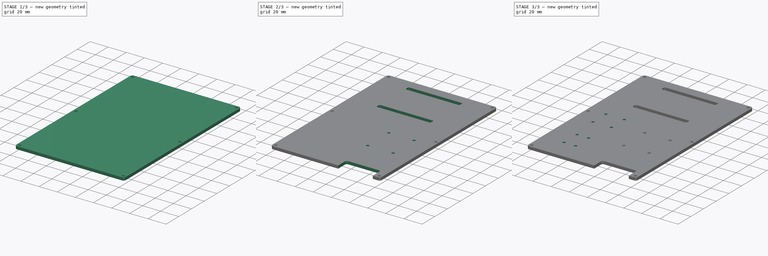
[diagram: build sequence overview — one tinted view per stage of 3, left to right]
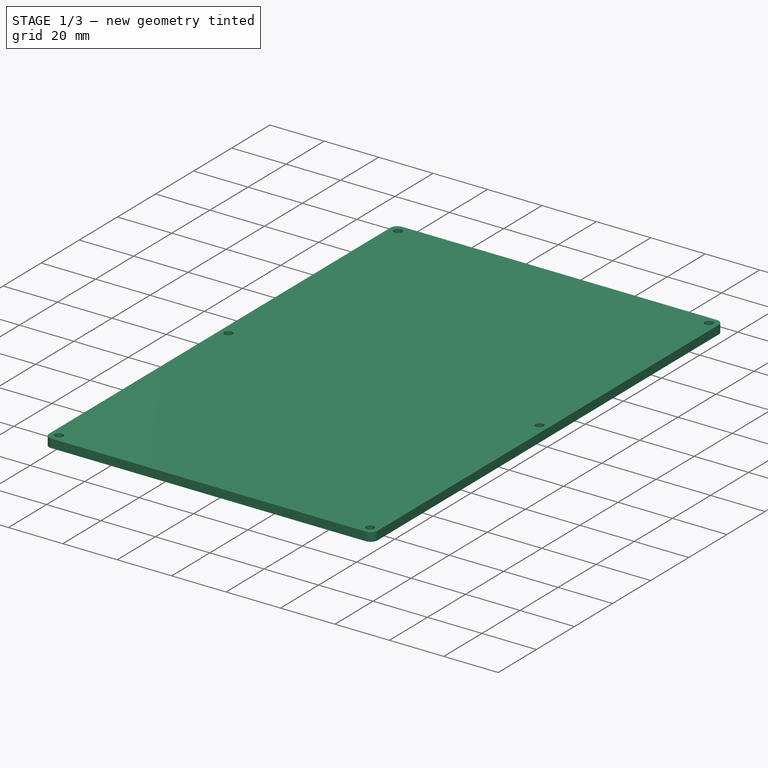
[diagram: stage 1 of 3 — iso view after this stage's code; geometry added in this stage tinted green]
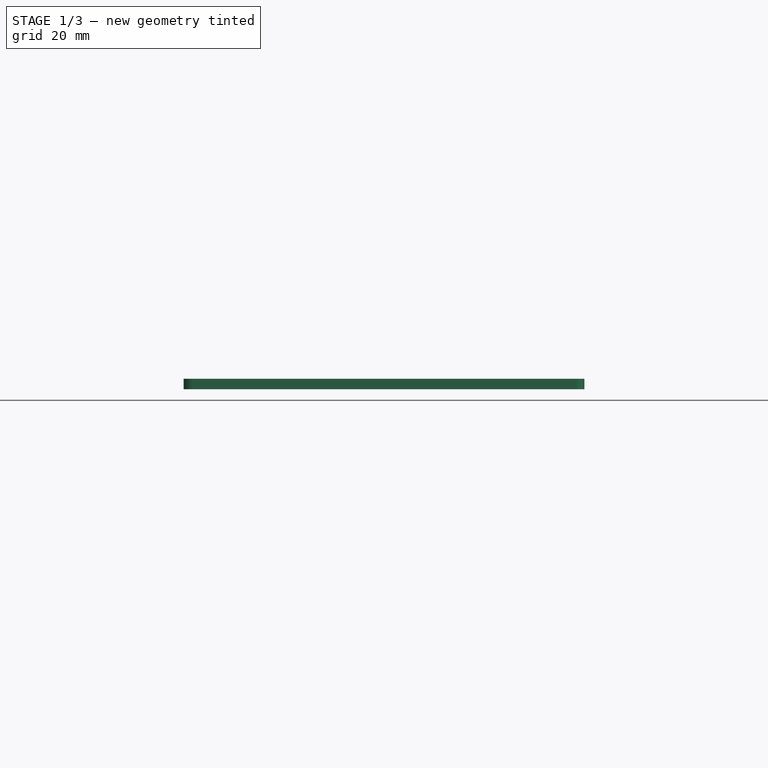
[diagram: stage 1 of 3 — front view after this stage's code; geometry added in this stage tinted green]
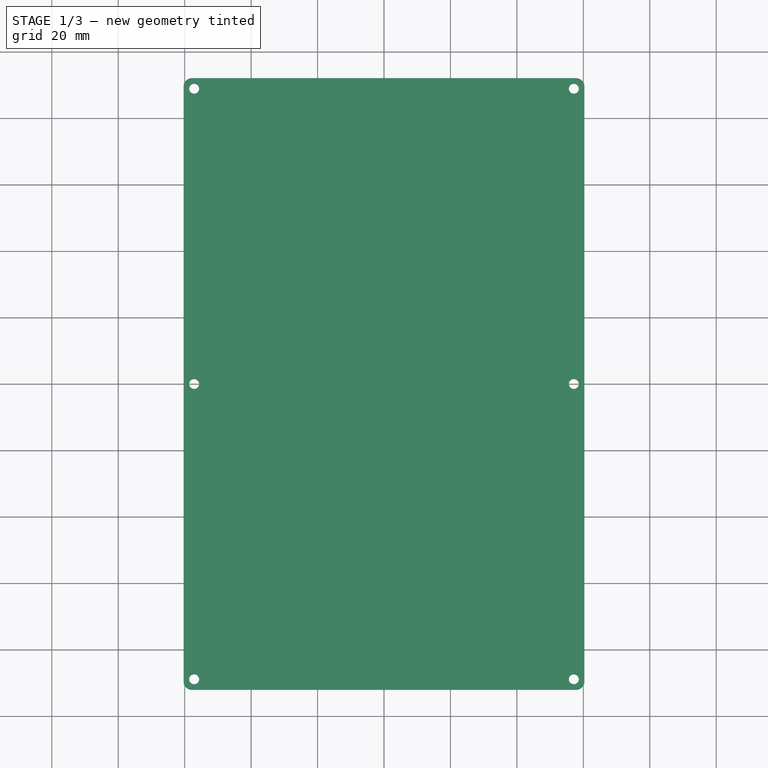
[diagram: stage 1 of 3 — top view after this stage's code; geometry added in this stage tinted green]
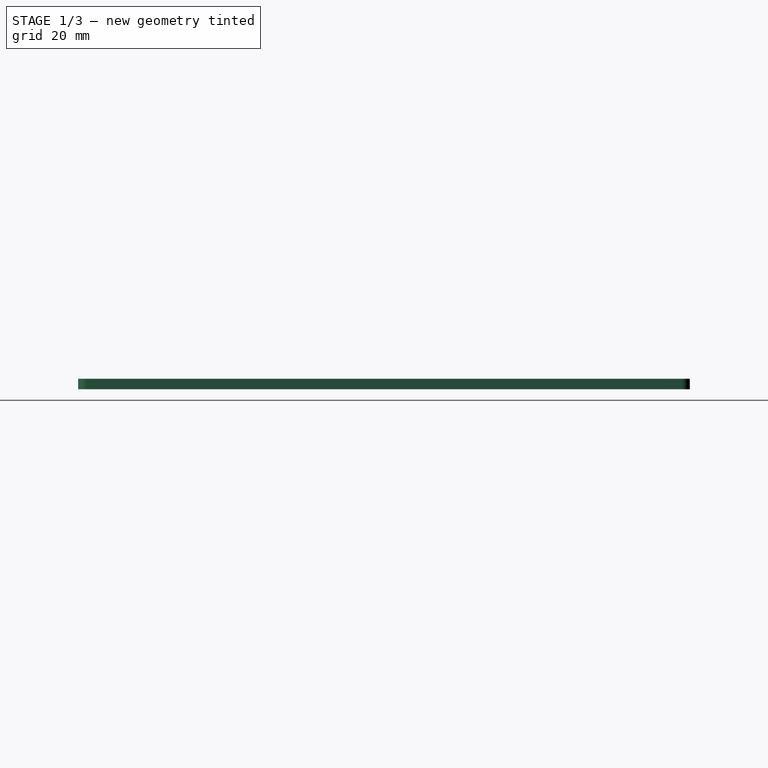
[diagram: stage 1 of 3 — right view after this stage's code; geometry added in this stage tinted green]
FCSTD DOCUMENT  (FreeCAD 0.20R29177 (Git))
Label: bot_plate
License: All rights reserved
LicenseURL: http://en.wikipedia.org/wiki/All_rights_reserved
objects: Sketcher::SketchObject×7, PartDesign::Pocket×6, Spreadsheet::Sheet×1, PartDesign::Pad×1, PartDesign::Plane×1, PartDesign::Body×1, Part::Part2DObjectPython×1
note: 24 computed .brp shape members not serialized (recipe doc carries the construction recipe); baked Part::Feature solids carry a one-line shape summary decoded from their .brp

FEATURE [Sketcher::SketchObject] Sketch  label="BoundarySketch"
  FullyConstrained = true
  MapMode = 5
  Support = -> [XY_Plane]
  expr: Constraints[20] = Spreadsheet.FilletRadius
  expr: Constraints[21] = Spreadsheet.Length
  expr: Constraints[22] = Spreadsheet.Width
  sketch-geometry (10):
    g0: ArcOfCircle CenterX=-57.785 CenterY=89.535 CenterZ=0 NormalX=0 NormalY=0 NormalZ=1 AngleXU=0 Radius=2.54 StartAngle=1.5708 EndAngle=3.14159
    g1: LineSegment StartX=-57.785 StartY=92.075 StartZ=0 EndX=57.785 EndY=92.075 EndZ=0
    g2: ArcOfCircle CenterX=57.785 CenterY=89.535 CenterZ=0 NormalX=0 NormalY=0 NormalZ=1 AngleXU=0 Radius=2.54 StartAngle=9e-16 EndAngle=1.5708
    g3: LineSegment StartX=60.325 StartY=89.535 StartZ=0 EndX=60.325 EndY=-89.535 EndZ=0
    g4: ArcOfCircle CenterX=57.785 CenterY=-89.535 CenterZ=0 NormalX=0 NormalY=0 NormalZ=1 AngleXU=0 Radius=2.54 StartAngle=4.71239 EndAngle=6.28319
    g5: LineSegment StartX=57.785 StartY=-92.075 StartZ=0 EndX=-57.785 EndY=-92.075 EndZ=0
    g6: ArcOfCircle CenterX=-57.785 CenterY=-89.535 CenterZ=0 NormalX=0 NormalY=0 NormalZ=1 AngleXU=0 Radius=2.54 StartAngle=3.14159 EndAngle=4.71239
    g7: LineSegment StartX=-60.325 StartY=-89.535 StartZ=0 EndX=-60.325 EndY=89.535 EndZ=0
    g8: GeomPoint X=-60.325 Y=92.075 Z=0
    g9: GeomPoint X=60.325 Y=-92.075 Z=0
  constraints (23):
    c: Tangent(g0,g1) = 1.5708
    c: Tangent(g1,g2) = 1.5708
    c: Tangent(g2,g3) = 1.5708
    c: Tangent(g3,g4) = 1.5708
    c: Tangent(g4,g5) = 1.5708
    c: Tangent(g5,g6) = 1.5708
    c: Tangent(g6,g7) = 1.5708
    c: Tangent(g7,g0) = 1.5708
    c: Horizontal(g1)
    c: Horizontal(g5)
    c: Vertical(g3)
    c: Vertical(g7)
    c: Equal(g0,g2)
    c: Equal(g2,g4)
    c: Equal(g4,g6)
    c: PointOnObject(g8,g1)
    c: PointOnObject(g8,g7)
    c: PointOnObject(g9,g3)
    c: PointOnObject(g9,g5)
    c: Symmetric(g0,g4,g-1)
    c: Radius(g2) = 2.54
    c: Distance(g4,g1) = 184.15
    c: Distance(g6,g3) = 120.65
FEATURE [Spreadsheet::Sheet] Spreadsheet
  cells = A2=Plate Dimensions; A3=Length; B3(Length)==7.25in; A4=Width; B4(Width)==4.75in; A5=Thickness; B5(Thickness)==0.125in; A6=FilletRadius; B6(FilletRadius)==0.1in; A8=Top Plate Mount; A9=TopPlateMountLength; B9(TopPlateMountLength)==7in; A10=TopPlateMountWidth; B10(TopPlateMountWidth)==4.5in; A11=TopPlateMountHoleDiameter; B11(TopPlateMountHoleDiameter)==3mm; A13=Battery Mount; A14=BatMountSlotLength; B14(BatMountSlotLength)==2in; A15=BatMountSlotWidth; B15(BatMountSlotWidth)==2.35in; A16=BatMountSlotOffsetY; B16(BatMountSlotOffsetY)==2.2in; A17=BatMountSlotGap; B17(BatMountSlotGap)==0.2in; A18=BatMountSlotFilletRadius; B18(BatMountSlotFilletRadius)==0.05in; A20=Solar Charger Mount; A21=ChargerMountLength; B21(ChargerMountLength)==1.3in; A22=ChargerMountWidth; B22(ChargerMountWidth)==1.1in; A23=ChargerMountHoleDiameter; B23(ChargerMountHoleDiameter)==3mm; A24=ChargerMountOffsetX; B24(ChargerMountOffsetX)==1in; A25=ChargerMountOffsetY; B25(ChargerMountOffsetY)==1in; A27=Power Cutout; A28=PowerCutoutLength; B28(PowerCutoutLength)==0.5in; A29=PowerCutoutWidth; B29(PowerCutoutWidth)==1.5in; A30=PowerCutoutOffsetX; B30(PowerCutoutOffsetX)==1.3in; A31=PowerCutoutMargin; B31(PowerCutoutMargin)==0.25in; A32=PowerCutoutFilletRadius; B32(PowerCutoutFilletRadius)==0.1in; A34=GPS Mount; A35=GPSMountLength; B35(GPSMountLength)==0.8in; A36=GPSMountWidth; B36(GPSMountWidth)==0.8in; A37=GPSMountHoleDiameter; B37(GPSMountHoleDiameter)==3mm; A38=GPSMountOffsetX; B38(GPSMountOffsetX)==0.25 * Width; A39=GPSMountOffsetY; B39(GPSMountOffsetY)==0.25in; A41=BME688 Mount; A42=BME688MountLength; B42(BME688MountLength)==0.8in; A43=BME688MountWidth; B43(BME688MountWidth)==0.5in; A44=BME688MountHoleDiamter; B44(BME688MountHoleDiamter)==3mm; A45=BME688MountOffsetX; B45(BME688MountOffsetX)==0.25 * Width; A46=BME688MountOffsetY; B46(BME688MountOffsetY)==2.25in
FEATURE [PartDesign::Pad] Pad  label="BoundaryPad"
  Direction = (0,0,1)
  Length = 3.175
  Length2 = 10
  Profile = -> Sketch
  ReferenceAxis = -> Sketch [N_Axis]
  Type = 0
  expr: Length = Spreadsheet.Thickness
FEATURE [PartDesign::Plane] DatumPlane  label="TopSurfaceDatumPlane"
  AttachmentOffset = pos=(0,0,3.175) rot=(0,0,1;0rad)
  Length = 150.461
  MapMode = 5
  Placement = pos=(0,0,3.175) rot=(0,0,1;0rad)
  ResizeMode = 0
  Support = -> [XY_Plane]
  Width = 213.961
  expr: .AttachmentOffset.Base.z = Spreadsheet.Thickness
FEATURE [Sketcher::SketchObject] Sketch001  label="TopPlateMountSketch"
  FullyConstrained = true
  MapMode = 5
  Placement = pos=(0,0,3.175) rot=(0,0,1;0rad)
  Support = -> [DatumPlane]
  expr: Constraints[10] = Spreadsheet.TopPlateMountWidth
  expr: Constraints[18] = Spreadsheet.TopPlateMountHoleDiameter
  expr: Constraints[9] = Spreadsheet.TopPlateMountLength
  sketch-geometry (12):
    g0: LineSegment StartX=-57.15 StartY=88.9 StartZ=0 EndX=57.15 EndY=88.9 EndZ=0
    g1: LineSegment StartX=57.15 StartY=88.9 StartZ=0 EndX=57.15 EndY=-88.9 EndZ=0
    g2: LineSegment StartX=57.15 StartY=-88.9 StartZ=0 EndX=-57.15 EndY=-88.9 EndZ=0
    g3: LineSegment StartX=-57.15 StartY=-88.9 StartZ=0 EndX=-57.15 EndY=88.9 EndZ=0
    g4: Circle CenterX=-57.15 CenterY=88.9 CenterZ=0 NormalX=0 NormalY=0 NormalZ=1 AngleXU=0 Radius=1.5
    g5: Circle CenterX=57.15 CenterY=88.9 CenterZ=0 NormalX=0 NormalY=0 NormalZ=1 AngleXU=0 Radius=1.5
    g6: Circle CenterX=-57.15 CenterY=-88.9 CenterZ=0 NormalX=0 NormalY=0 NormalZ=1 AngleXU=0 Radius=1.5
    g7: Circle CenterX=57.15 CenterY=-88.9 CenterZ=0 NormalX=0 NormalY=0 NormalZ=1 AngleXU=0 Radius=1.5
    g8: GeomPoint X=-57.15 Y=6e-15 Z=0
    g9: GeomPoint X=57.15 Y=7.5e-15 Z=0
    g10: Circle CenterX=-57.15 CenterY=6e-15 CenterZ=0 NormalX=0 NormalY=0 NormalZ=1 AngleXU=0 Radius=1.5
    g11: Circle CenterX=57.15 CenterY=7.5e-15 CenterZ=0 NormalX=0 NormalY=0 NormalZ=1 AngleXU=0 Radius=1.5
  constraints (25):
    c: Coincident(g0,g1)
    c: Coincident(g1,g2)
    c: Coincident(g2,g3)
    c: Coincident(g3,g0)
    c: Horizontal(g0)
    c: Horizontal(g2)
    c: Vertical(g1)
    c: Vertical(g3)
    c: Symmetric(g0,g1,g-1)
    c: Distance(g1) = 177.8
    c: Distance(g2) = 114.3
    c: Equal(g4,g5)
    c: Equal(g5,g7)
    c: Equal(g7,g6)
    c: Coincident(g4,g0)
    c: Coincident(g0,g5)
    c: Coincident(g6,g2)
    c: Coincident(g1,g7)
    c: Diameter(g4) = 3
    c: Symmetric(g4,g6,g8)
    c: Symmetric(g7,g5,g9)
    c: Equal(g10,g11)
    c: Equal(g11,g4)
    c: Coincident(g10,g8)
    c: Coincident(g11,g9)
FEATURE [PartDesign::Pocket] Pocket  label="TopPlateMountPocket"
  BaseFeature = -> Pad
  Direction = (0,0,-1)
  Length = 5
  Length2 = 5
  Profile = -> Sketch001
  ReferenceAxis = -> Sketch001 [N_Axis]
  Type = 1
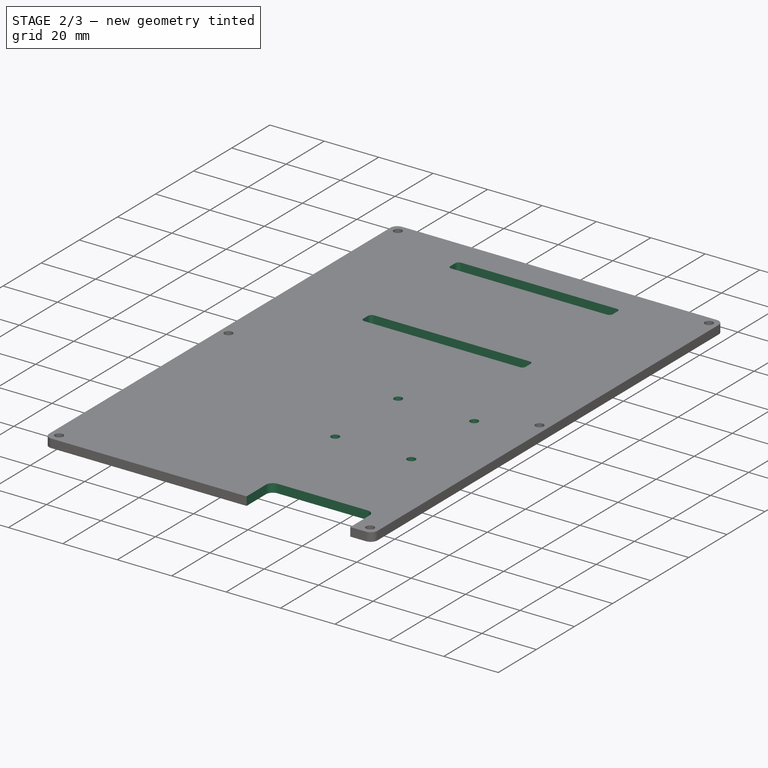
[diagram: stage 2 of 3 — iso view after this stage's code; geometry added in this stage tinted green]
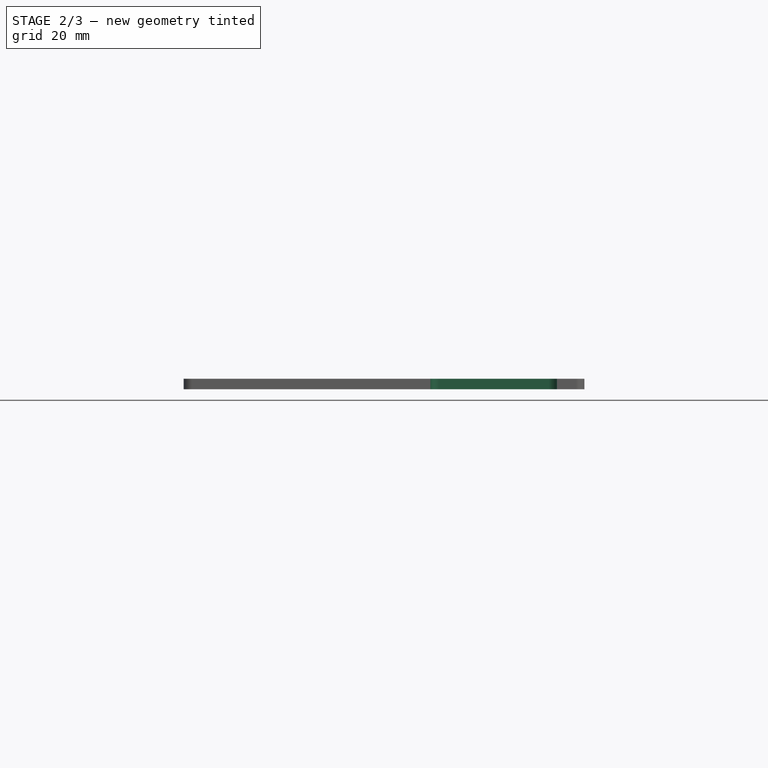
[diagram: stage 2 of 3 — front view after this stage's code; geometry added in this stage tinted green]
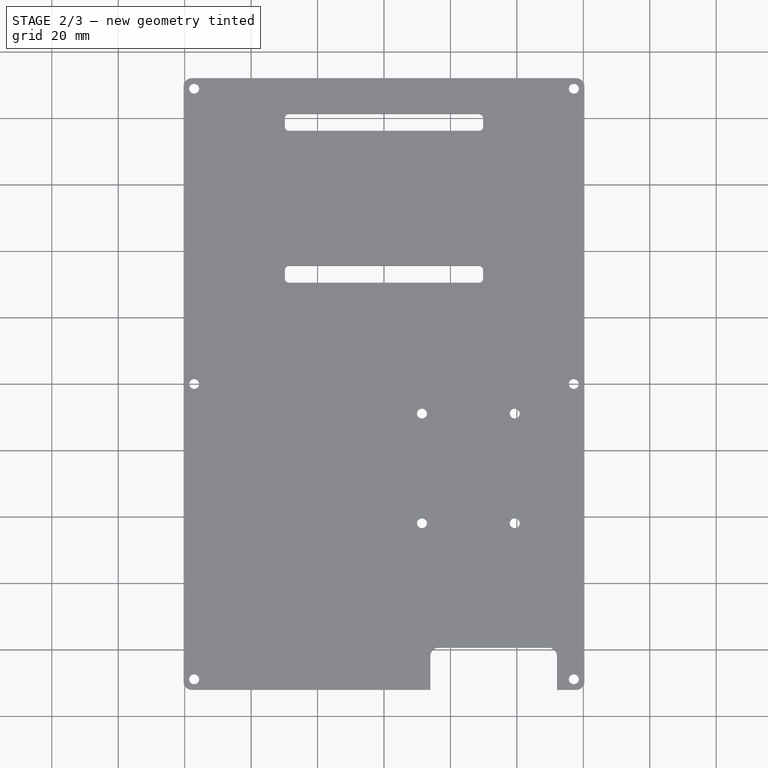
[diagram: stage 2 of 3 — top view after this stage's code; geometry added in this stage tinted green]
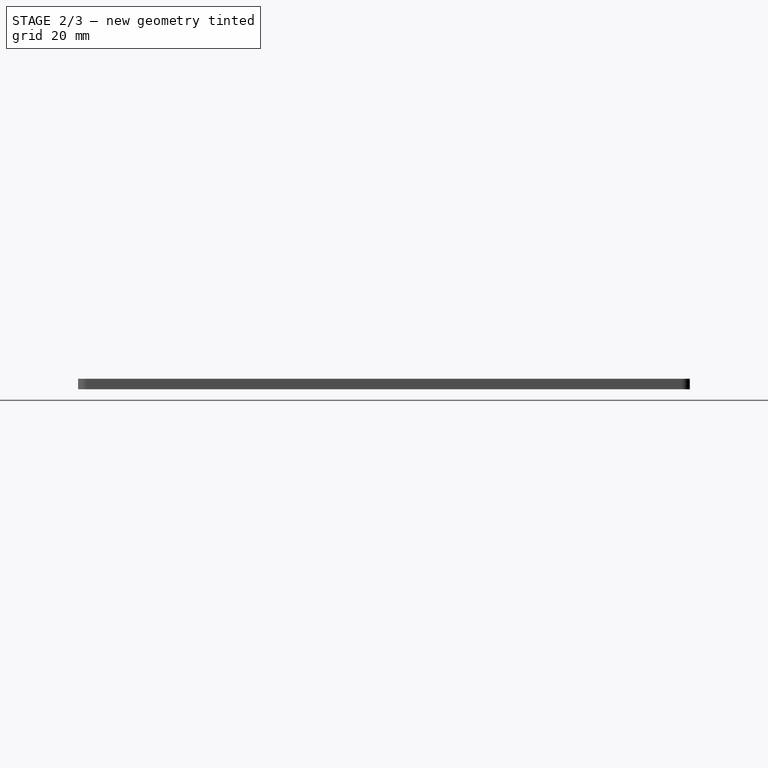
[diagram: stage 2 of 3 — right view after this stage's code; geometry added in this stage tinted green]
FEATURE [Sketcher::SketchObject] Sketch002  label="BatMountSlotSketch"
  FullyConstrained = true
  MapMode = 5
  Placement = pos=(0,0,3.175) rot=(0,0,1;0rad)
  Support = -> [DatumPlane]
  expr: Constraints[2] = Spreadsheet.BatMountSlotOffsetY
  expr: Constraints[47] = Spreadsheet.BatMountSlotWidth
  expr: Constraints[48] = Spreadsheet.BatMountSlotGap
  expr: Constraints[49] = Spreadsheet.BatMountSlotFilletRadius
  expr: Constraints[4] = Spreadsheet.BatMountSlotLength
  sketch-geometry (22):
    g0: LineSegment StartX=0 StartY=0 StartZ=0 EndX=0 EndY=55.88 EndZ=0
    g1: LineSegment StartX=0 StartY=81.28 StartZ=0 EndX=0 EndY=30.48 EndZ=0
    g2: ArcOfCircle CenterX=-28.575 CenterY=80.01 CenterZ=0 NormalX=0 NormalY=0 NormalZ=1 AngleXU=0 Radius=1.27 StartAngle=1.5708 EndAngle=3.14159
    g3: LineSegment StartX=-28.575 StartY=81.28 StartZ=0 EndX=28.575 EndY=81.28 EndZ=0
    g4: ArcOfCircle CenterX=28.575 CenterY=80.01 CenterZ=0 NormalX=0 NormalY=0 NormalZ=1 AngleXU=0 Radius=1.27 StartAngle=-4.4e-15 EndAngle=1.5708
    g5: LineSegment StartX=29.845 StartY=80.01 StartZ=0 EndX=29.845 EndY=77.47 EndZ=0
    g6: ArcOfCircle CenterX=28.575 CenterY=77.47 CenterZ=0 NormalX=0 NormalY=0 NormalZ=1 AngleXU=0 Radius=1.27 StartAngle=4.71239 EndAngle=6.28319
    g7: LineSegment StartX=28.575 StartY=76.2 StartZ=0 EndX=-28.575 EndY=76.2 EndZ=0
    g8: ArcOfCircle CenterX=-28.575 CenterY=77.47 CenterZ=0 NormalX=0 NormalY=0 NormalZ=1 AngleXU=0 Radius=1.27 StartAngle=3.14159 EndAngle=4.71239
    g9: LineSegment StartX=-29.845 StartY=77.47 StartZ=0 EndX=-29.845 EndY=80.01 EndZ=0
    g10: GeomPoint X=-29.845 Y=81.28 Z=0
    g11: GeomPoint X=29.845 Y=76.2 Z=0
    g12: ArcOfCircle CenterX=-28.575 CenterY=34.29 CenterZ=0 NormalX=0 NormalY=0 NormalZ=1 AngleXU=0 Radius=1.27 StartAngle=1.5708 EndAngle=3.14159
    g13: LineSegment StartX=-28.575 StartY=35.56 StartZ=0 EndX=28.575 EndY=35.56 EndZ=0
    g14: ArcOfCircle CenterX=28.575 CenterY=34.29 CenterZ=0 NormalX=0 NormalY=0 NormalZ=1 AngleXU=0 Radius=1.27 StartAngle=-1.8e-15 EndAngle=1.5708
    g15: LineSegment StartX=29.845 StartY=34.29 StartZ=0 EndX=29.845 EndY=31.75 EndZ=0
    g16: ArcOfCircle CenterX=28.575 CenterY=31.75 CenterZ=0 NormalX=0 NormalY=0 NormalZ=1 AngleXU=0 Radius=1.27 StartAngle=4.71239 EndAngle=6.28319
    g17: LineSegment StartX=28.575 StartY=30.48 StartZ=0 EndX=-28.575 EndY=30.48 EndZ=0
    g18: ArcOfCircle CenterX=-28.575 CenterY=31.75 CenterZ=0 NormalX=0 NormalY=0 NormalZ=1 AngleXU=0 Radius=1.27 StartAngle=3.14159 EndAngle=4.71239
    g19: LineSegment StartX=-29.845 StartY=31.75 StartZ=0 EndX=-29.845 EndY=34.29 EndZ=0
    g20: GeomPoint X=-29.845 Y=35.56 Z=0
    g21: GeomPoint X=29.845 Y=30.48 Z=0
  constraints (52):
    c: Vertical(g0)
    c: Coincident(g-1,g0)
    c: Distance(g0) = 55.88
    c: Vertical(g1)
    c: Distance(g1) = 50.8
    c: Symmetric(g1,g1,g0)
    c: Tangent(g2,g3) = 1.5708
    c: Tangent(g3,g4) = 1.5708
    c: Tangent(g4,g5) = 1.5708
    c: Tangent(g5,g6) = 1.5708
    c: Tangent(g6,g7) = 1.5708
    c: Tangent(g7,g8) = 1.5708
    c: Tangent(g8,g9) = 1.5708
    c: Tangent(g9,g2) = 1.5708
    c: Horizontal(g3)
    c: Horizontal(g7)
    c: Vertical(g5)
    c: Vertical(g9)
    c: Equal(g2,g4)
    c: Equal(g4,g6)
    c: Equal(g6,g8)
    c: PointOnObject(g10,g3)
    c: PointOnObject(g10,g9)
    c: PointOnObject(g11,g5)
    c: PointOnObject(g11,g7)
    c: Tangent(g12,g13) = 1.5708
    c: Tangent(g13,g14) = 1.5708
    c: Tangent(g14,g15) = 1.5708
    c: Tangent(g15,g16) = 1.5708
    c: Tangent(g16,g17) = 1.5708
    c: Tangent(g17,g18) = 1.5708
    c: Tangent(g18,g19) = 1.5708
    c: Tangent(g19,g12) = 1.5708
    c: Horizontal(g13)
    c: Horizontal(g17)
    c: Vertical(g15)
    c: Vertical(g19)
    c: Equal(g12,g14)
    c: Equal(g14,g16)
    c: Equal(g16,g18)
    c: PointOnObject(g20,g13)
    c: PointOnObject(g20,g19)
    c: PointOnObject(g21,g15)
    c: PointOnObject(g21,g17)
    c: Equal(g12,g8)
    c: Equal(g3,g13)
    c: Equal(g5,g15)
    c: Distance(g18,g15) = 59.69
    c: Distance(g13,g16) = 5.08
    c: Radius(g12) = 1.27
    c: Symmetric(g16,g17,g1)
    c: Symmetric(g2,g3,g1)
FEATURE [PartDesign::Pocket] Pocket001  label="BatMoutSlotPocket"
  BaseFeature = -> Pocket
  Direction = (0,0,-1)
  Length = 5
  Length2 = 5
  Profile = -> Sketch002
  ReferenceAxis = -> Sketch002 [N_Axis]
  Type = 1
FEATURE [Sketcher::SketchObject] Sketch003  label="ChargerMountSketch"
  FullyConstrained = true
  MapMode = 5
  Placement = pos=(0,0,3.175) rot=(0,0,1;0rad)
  Support = -> [DatumPlane]
  expr: Constraints[15] = Spreadsheet.ChargerMountLength
  expr: Constraints[16] = Spreadsheet.ChargerMountWidth
  expr: Constraints[24] = Spreadsheet.ChargerMountHoleDiameter
  expr: Constraints[4] = Spreadsheet.ChargerMountOffsetY
  expr: Constraints[5] = Spreadsheet.ChargerMountOffsetX
  sketch-geometry (10):
    g0: LineSegment StartX=0 StartY=0 StartZ=0 EndX=0 EndY=-25.4 EndZ=0
    g1: LineSegment StartX=0 StartY=-25.4 StartZ=0 EndX=25.4 EndY=-25.4 EndZ=0
    g2: LineSegment StartX=11.43 StartY=-8.89 StartZ=0 EndX=39.37 EndY=-8.89 EndZ=0
    g3: LineSegment StartX=39.37 StartY=-8.89 StartZ=0 EndX=39.37 EndY=-41.91 EndZ=0
    g4: LineSegment StartX=39.37 StartY=-41.91 StartZ=0 EndX=11.43 EndY=-41.91 EndZ=0
    g5: LineSegment StartX=11.43 StartY=-41.91 StartZ=0 EndX=11.43 EndY=-8.89 EndZ=0
    g6: Circle CenterX=11.43 CenterY=-8.89 CenterZ=0 NormalX=0 NormalY=0 NormalZ=1 AngleXU=0 Radius=1.5
    g7: Circle CenterX=39.37 CenterY=-8.89 CenterZ=0 NormalX=0 NormalY=0 NormalZ=1 AngleXU=0 Radius=1.5
    g8: Circle CenterX=11.43 CenterY=-41.91 CenterZ=0 NormalX=0 NormalY=0 NormalZ=1 AngleXU=0 Radius=1.5
    g9: Circle CenterX=39.37 CenterY=-41.91 CenterZ=0 NormalX=0 NormalY=0 NormalZ=1 AngleXU=0 Radius=1.5
  constraints (25):
    c: Vertical(g0)
    c: Coincident(g0,g1)
    c: Horizontal(g1)
    c: Coincident(g-1,g0)
    c: Distance(g0) = 25.4
    c: Distance(g1) = 25.4
    c: Coincident(g2,g3)
    c: Coincident(g3,g4)
    c: Coincident(g4,g5)
    c: Coincident(g5,g2)
    c: Horizontal(g2)
    c: Horizontal(g4)
    c: Vertical(g3)
    c: Vertical(g5)
    c: Symmetric(g2,g3,g1)
    c: Distance(g3) = 33.02
    c: Distance(g4) = 27.94
    c: Equal(g6,g7)
    c: Equal(g7,g9)
    c: Equal(g9,g8)
    c: Coincident(g6,g2)
    c: Coincident(g2,g7)
    c: Coincident(g8,g4)
    c: Coincident(g9,g3)
    c: Diameter(g9) = 3
FEATURE [PartDesign::Pocket] Pocket002  label="ChargerMountPocket"
  BaseFeature = -> Pocket001
  Direction = (0,0,-1)
  Length = 5
  Length2 = 5
  Profile = -> Sketch003
  ReferenceAxis = -> Sketch003 [N_Axis]
  Type = 0
FEATURE [Sketcher::SketchObject] Sketch004  label="PowerCutoutSketch"
  FullyConstrained = true
  MapMode = 5
  Placement = pos=(0,0,3.175) rot=(0,0,1;0rad)
  Support = -> [DatumPlane]
  expr: Constraints[15] = Spreadsheet.PowerCutoutWidth
  expr: Constraints[16] = Spreadsheet.PowerCutoutLength
  expr: Constraints[17] = Spreadsheet.PowerCutoutMargin
  expr: Constraints[2] = Spreadsheet.Length * 0.5
  expr: Constraints[37] = Spreadsheet.PowerCutoutFilletRadius
  expr: Constraints[5] = Spreadsheet.PowerCutoutOffsetX
  sketch-geometry (16):
    g0: LineSegment StartX=0 StartY=0 StartZ=0 EndX=0 EndY=-92.075 EndZ=0
    g1: LineSegment StartX=0 StartY=-92.075 StartZ=0 EndX=33.02 EndY=-92.075 EndZ=0
    g2: LineSegment StartX=13.97 StartY=-92.075 StartZ=0 EndX=13.97 EndY=-81.915 EndZ=0
    g3: LineSegment StartX=16.51 StartY=-79.375 StartZ=0 EndX=49.53 EndY=-79.375 EndZ=0
    g4: LineSegment StartX=52.07 StartY=-81.915 StartZ=0 EndX=52.07 EndY=-92.075 EndZ=0
    g5: LineSegment StartX=52.07 StartY=-92.075 StartZ=0 EndX=52.07 EndY=-95.885 EndZ=0
    g6: LineSegment StartX=49.53 StartY=-98.425 StartZ=0 EndX=16.51 EndY=-98.425 EndZ=0
    g7: LineSegment StartX=13.97 StartY=-95.885 StartZ=0 EndX=13.97 EndY=-92.075 EndZ=0
    g8: ArcOfCircle CenterX=16.51 CenterY=-81.915 CenterZ=0 NormalX=0 NormalY=0 NormalZ=1 AngleXU=0 Radius=2.54 StartAngle=1.5708 EndAngle=3.14159
    g9: GeomPoint X=13.97 Y=-79.375 Z=0
    g10: ArcOfCircle CenterX=49.53 CenterY=-81.915 CenterZ=0 NormalX=0 NormalY=0 NormalZ=1 AngleXU=0 Radius=2.54 StartAngle=4.9937e-12 EndAngle=1.5708
    g11: GeomPoint X=52.07 Y=-79.375 Z=0
    g12: ArcOfCircle CenterX=49.53 CenterY=-95.885 CenterZ=0 NormalX=0 NormalY=0 NormalZ=1 AngleXU=0 Radius=2.54 StartAngle=4.71239 EndAngle=6.28319
    g13: GeomPoint X=52.07 Y=-98.425 Z=0
    g14: ArcOfCircle CenterX=16.51 CenterY=-95.885 CenterZ=0 NormalX=0 NormalY=0 NormalZ=1 AngleXU=0 Radius=2.54 StartAngle=3.14159 EndAngle=4.71239
    g15: GeomPoint X=13.97 Y=-98.425 Z=0
  constraints (39):
    c: Vertical(g0)
    c: Coincident(g0,g-1)
    c: Distance(g0) = 92.075
    c: Horizontal(g1)
    c: Coincident(g0,g1)
    c: Distance(g1) = 33.02
    c: Vertical(g2)
    c: Horizontal(g3)
    c: Vertical(g4)
    c: Coincident(g4,g5)
    c: Vertical(g5)
    c: Horizontal(g6)
    c: Vertical(g7)
    c: Coincident(g2,g7)
    c: Symmetric(g2,g4,g1)
    c: Distance(g11,g9) = 38.1
    c: Distance(g4,g11) = 12.7
    c: Distance(g5,g13) = 6.35
    c: PointOnObject(g9,g3)
    c: PointOnObject(g9,g2)
    c: Tangent(g3,g8) = 1.5708
    c: Tangent(g2,g8) = 1.5708
    c: PointOnObject(g11,g3)
    c: PointOnObject(g11,g4)
    c: Tangent(g3,g10) = 1.5708
    c: Tangent(g4,g10) = 1.5708
    c: PointOnObject(g13,g6)
    c: PointOnObject(g13,g5)
    c: Tangent(g6,g12) = 1.5708
    c: Tangent(g5,g12) = 1.5708
    c: PointOnObject(g15,g7)
    c: PointOnObject(g15,g6)
    c: Tangent(g7,g14) = 1.5708
    c: Tangent(g6,g14) = 1.5708
    c: Equal(g8,g10)
    c: Equal(g10,g12)
    c: Equal(g12,g14)
    c: Radius(g8) = 2.54
    c: Equal(g7,g5)
FEATURE [PartDesign::Pocket] Pocket003  label="PowerCutoutPocket"
  BaseFeature = -> Pocket002
  Direction = (0,0,-1)
  Length = 5
  Length2 = 5
  Profile = -> Sketch004
  ReferenceAxis = -> Sketch004 [N_Axis]
  Type = 1
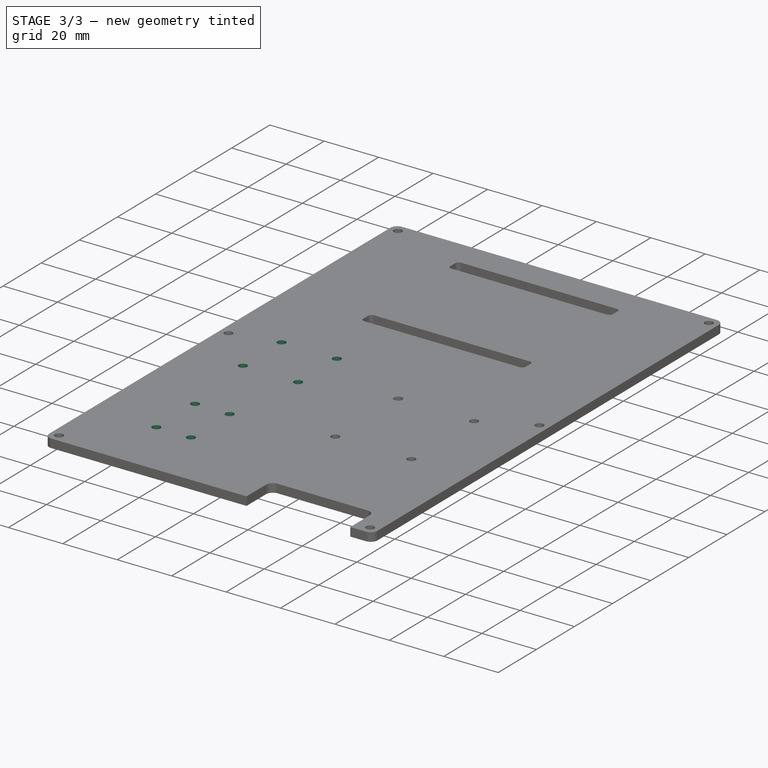
[diagram: stage 3 of 3 — iso view after this stage's code; geometry added in this stage tinted green]
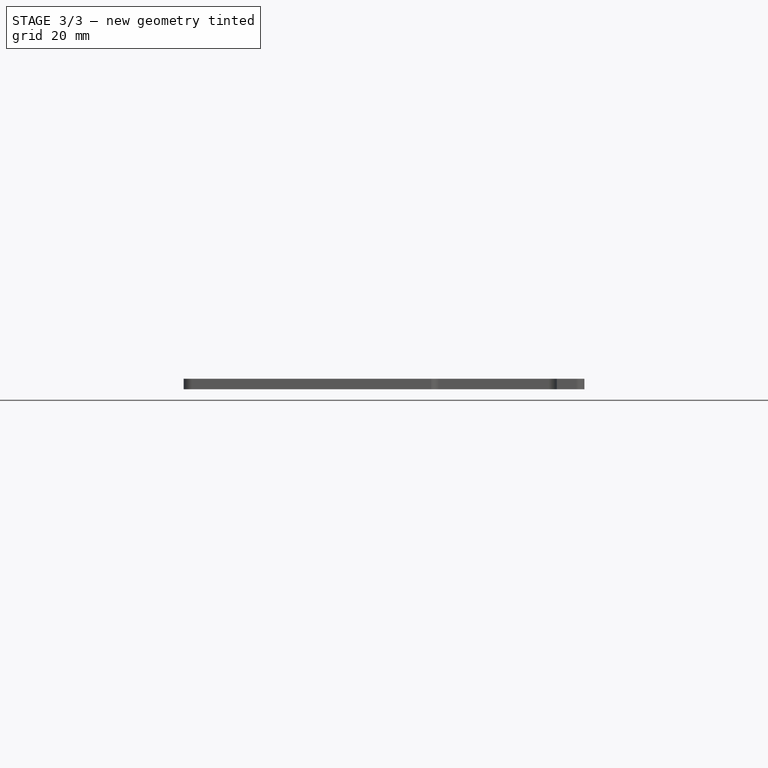
[diagram: stage 3 of 3 — front view after this stage's code; geometry added in this stage tinted green]
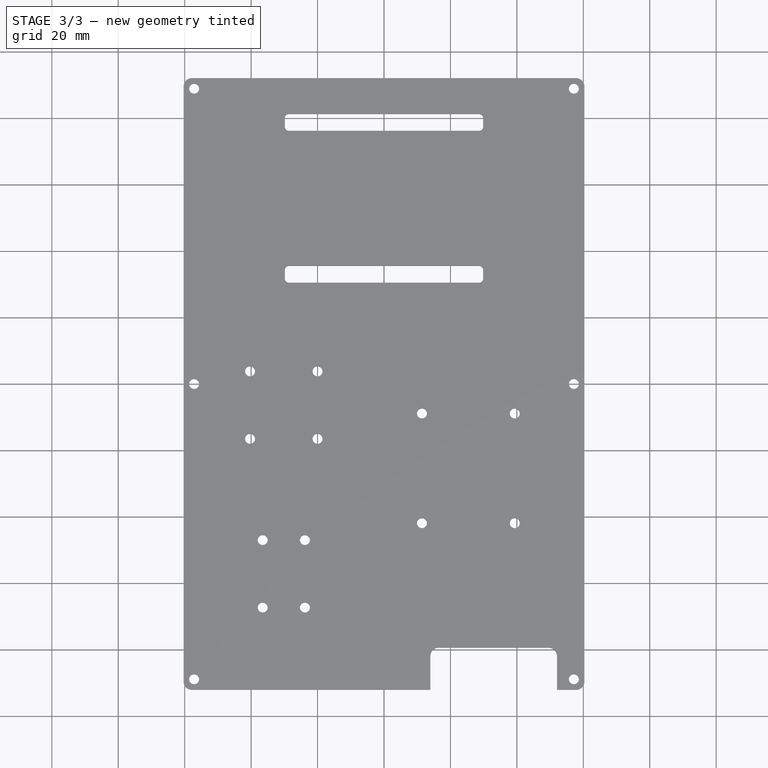
[diagram: stage 3 of 3 — top view after this stage's code; geometry added in this stage tinted green]
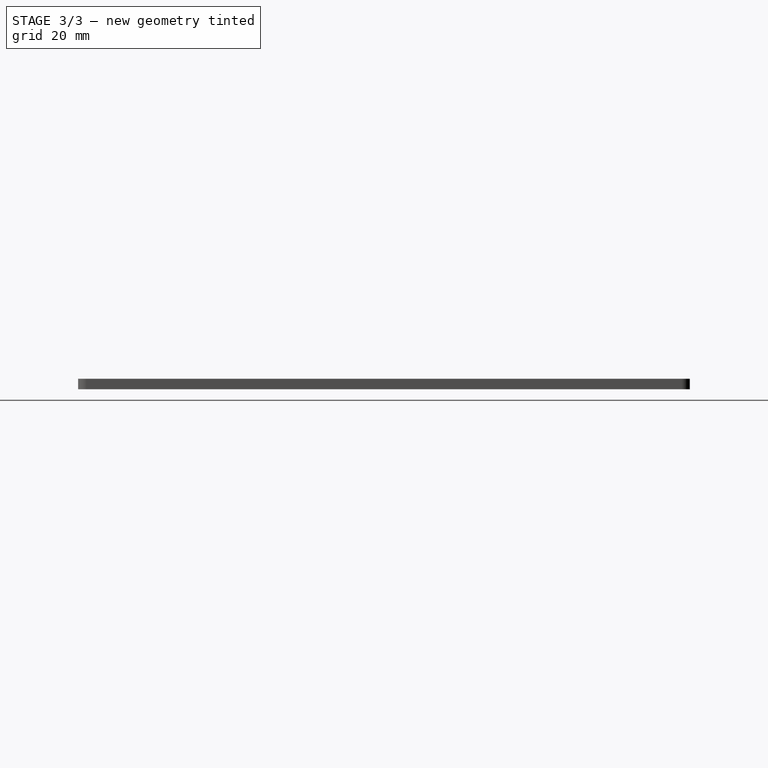
[diagram: stage 3 of 3 — right view after this stage's code; geometry added in this stage tinted green]
FEATURE [Sketcher::SketchObject] Sketch005  label="GPSMountSketch"
  FullyConstrained = true
  MapMode = 5
  Placement = pos=(0,0,3.175) rot=(0,0,1;0rad)
  Support = -> [DatumPlane]
  expr: Constraints[15] = Spreadsheet.GPSMountWidth
  expr: Constraints[16] = Spreadsheet.GPSMountLength
  expr: Constraints[24] = Spreadsheet.GPSMountHoleDiameter
  expr: Constraints[4] = Spreadsheet.GPSMountOffsetX
  expr: Constraints[5] = Spreadsheet.GPSMountOffsetY
  sketch-geometry (10):
    g0: LineSegment StartX=0 StartY=0 StartZ=0 EndX=-30.1625 EndY=0 EndZ=0
    g1: LineSegment StartX=-30.1625 StartY=0 StartZ=0 EndX=-30.1625 EndY=-6.35 EndZ=0
    g2: LineSegment StartX=-40.3225 StartY=3.81 StartZ=0 EndX=-20.0025 EndY=3.81 EndZ=0
    g3: LineSegment StartX=-20.0025 StartY=3.81 StartZ=0 EndX=-20.0025 EndY=-16.51 EndZ=0
    g4: LineSegment StartX=-20.0025 StartY=-16.51 StartZ=0 EndX=-40.3225 EndY=-16.51 EndZ=0
    g5: LineSegment StartX=-40.3225 StartY=-16.51 StartZ=0 EndX=-40.3225 EndY=3.81 EndZ=0
    g6: Circle CenterX=-40.3225 CenterY=3.81 CenterZ=0 NormalX=0 NormalY=0 NormalZ=1 AngleXU=0 Radius=1.5
    g7: Circle CenterX=-20.0025 CenterY=3.81 CenterZ=0 NormalX=0 NormalY=0 NormalZ=1 AngleXU=0 Radius=1.5
    g8: Circle CenterX=-40.3225 CenterY=-16.51 CenterZ=0 NormalX=0 NormalY=0 NormalZ=1 AngleXU=0 Radius=1.5
    g9: Circle CenterX=-20.0025 CenterY=-16.51 CenterZ=0 NormalX=0 NormalY=0 NormalZ=1 AngleXU=0 Radius=1.5
  constraints (25):
    c: Horizontal(g0)
    c: Coincident(g0,g1)
    c: Vertical(g1)
    c: Coincident(g0,g-1)
    c: Distance(g0) = 30.1625
    c: Distance(g1) = 6.35
    c: Coincident(g2,g3)
    c: Coincident(g3,g4)
    c: Coincident(g4,g5)
    c: Coincident(g5,g2)
    c: Horizontal(g2)
    c: Horizontal(g4)
    c: Vertical(g3)
    c: Vertical(g5)
    c: Symmetric(g2,g3,g1)
    c: Distance(g4) = 20.32
    c: Distance(g3) = 20.32
    c: Equal(g6,g7)
    c: Equal(g7,g9)
    c: Equal(g9,g8)
    c: Coincident(g6,g2)
    c: Coincident(g7,g2)
    c: Coincident(g9,g3)
    c: Coincident(g8,g4)
    c: Diameter(g6) = 3
FEATURE [PartDesign::Pocket] Pocket004  label="GPSMountPocket"
  BaseFeature = -> Pocket003
  Direction = (0,0,-1)
  Length = 5
  Length2 = 5
  Profile = -> Sketch005
  ReferenceAxis = -> Sketch005 [N_Axis]
  Type = 1
FEATURE [Sketcher::SketchObject] Sketch006  label="BME688MoutSketch"
  FullyConstrained = true
  MapMode = 5
  Placement = pos=(0,0,3.175) rot=(0,0,1;0rad)
  Support = -> [DatumPlane]
  expr: Constraints[22] = Spreadsheet.BME688MountLength
  expr: Constraints[23] = Spreadsheet.BME688MountWidth
  expr: Constraints[24] = Spreadsheet.BME688MountHoleDiamter
  expr: Constraints[4] = Spreadsheet.BME688MountOffsetX
  expr: Constraints[5] = Spreadsheet.BME688MountOffsetY
  sketch-geometry (10):
    g0: LineSegment StartX=0 StartY=0 StartZ=0 EndX=-30.1625 EndY=0 EndZ=0
    g1: LineSegment StartX=-30.1625 StartY=0 StartZ=0 EndX=-30.1625 EndY=-57.15 EndZ=0
    g2: LineSegment StartX=-36.5125 StartY=-46.99 StartZ=0 EndX=-23.8125 EndY=-46.99 EndZ=0
    g3: LineSegment StartX=-23.8125 StartY=-46.99 StartZ=0 EndX=-23.8125 EndY=-67.31 EndZ=0
    g4: LineSegment StartX=-23.8125 StartY=-67.31 StartZ=0 EndX=-36.5125 EndY=-67.31 EndZ=0
    g5: LineSegment StartX=-36.5125 StartY=-67.31 StartZ=0 EndX=-36.5125 EndY=-46.99 EndZ=0
    g6: Circle CenterX=-36.5125 CenterY=-46.99 CenterZ=0 NormalX=0 NormalY=0 NormalZ=1 AngleXU=0 Radius=1.5
    g7: Circle CenterX=-23.8125 CenterY=-46.99 CenterZ=0 NormalX=0 NormalY=0 NormalZ=1 AngleXU=0 Radius=1.5
    g8: Circle CenterX=-36.5125 CenterY=-67.31 CenterZ=0 NormalX=0 NormalY=0 NormalZ=1 AngleXU=0 Radius=1.5
    g9: Circle CenterX=-23.8125 CenterY=-67.31 CenterZ=0 NormalX=0 NormalY=0 NormalZ=1 AngleXU=0 Radius=1.5
  constraints (25):
    c: Horizontal(g0)
    c: Coincident(g0,g1)
    c: Vertical(g1)
    c: Coincident(g0,g-1)
    c: Distance(g0) = 30.1625
    c: Distance(g1) = 57.15
    c: Coincident(g2,g3)
    c: Coincident(g3,g4)
    c: Coincident(g4,g5)
    c: Coincident(g5,g2)
    c: Horizontal(g2)
    c: Horizontal(g4)
    c: Vertical(g3)
    c: Vertical(g5)
    c: Symmetric(g2,g3,g1)
    c: Equal(g8,g6)
    c: Equal(g6,g7)
    c: Equal(g7,g9)
    c: Coincident(g6,g2)
    c: Coincident(g7,g2)
    c: Coincident(g9,g3)
    c: Coincident(g8,g4)
    c: Distance(g3) = 20.32
    c: Distance(g4) = 12.7
    c: Diameter(g6) = 3
FEATURE [PartDesign::Pocket] Pocket005  label="BME688MountPocket"
  BaseFeature = -> Pocket004
  Direction = (0,0,-1)
  Length = 5
  Length2 = 5
  Profile = -> Sketch006
  ReferenceAxis = -> Sketch006 [N_Axis]
  Type = 1
FEATURE [PartDesign::Body] Body
  Group = -> [Sketch,Pad,DatumPlane,Sketch001,Pocket,Sketch002,Pocket001,Sketch003,Pocket002,Sketch004,Pocket003,Sketch005,Pocket004,Sketch006,Pocket005]
  Origin = -> Origin
  Tip = -> Pocket005
FEATURE [Part::Part2DObjectPython] Shape2DView  # Draft 2D object (typed FeaturePython)
  AutoUpdate = true
  Base = -> Pocket005
  Clip = false
  FaceNumbers = [4]
  FuseArch = false
  HiddenLines = false
  InPlace = true
  OnlySolids = false
  Projection = (0,0,1)
  ProjectionMode = 0
  SegmentLength = 0.05
  Tessellation = false
  VisibleOnly = false
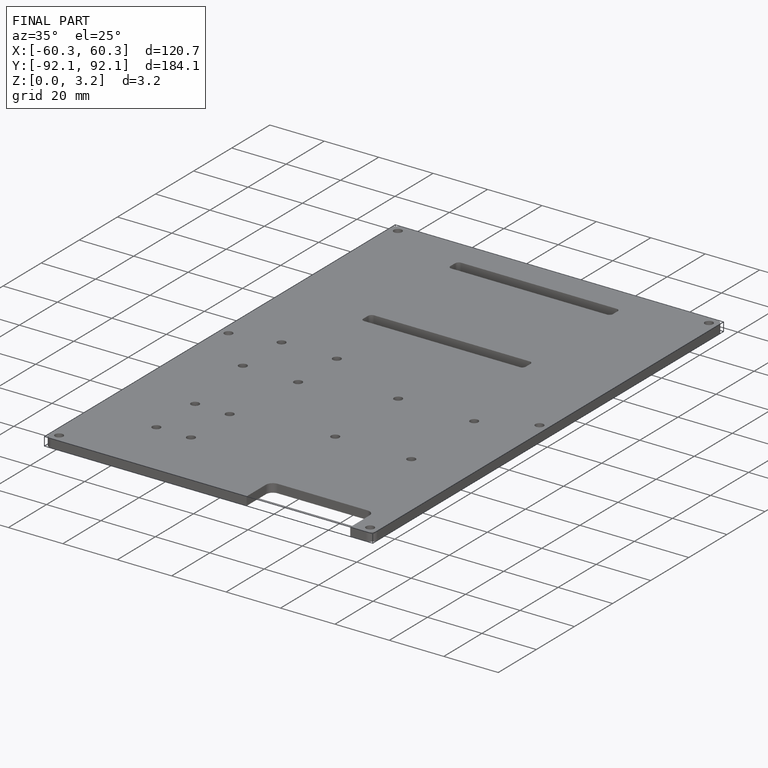
[diagram: finished part — iso view with bounding-box wireframe]
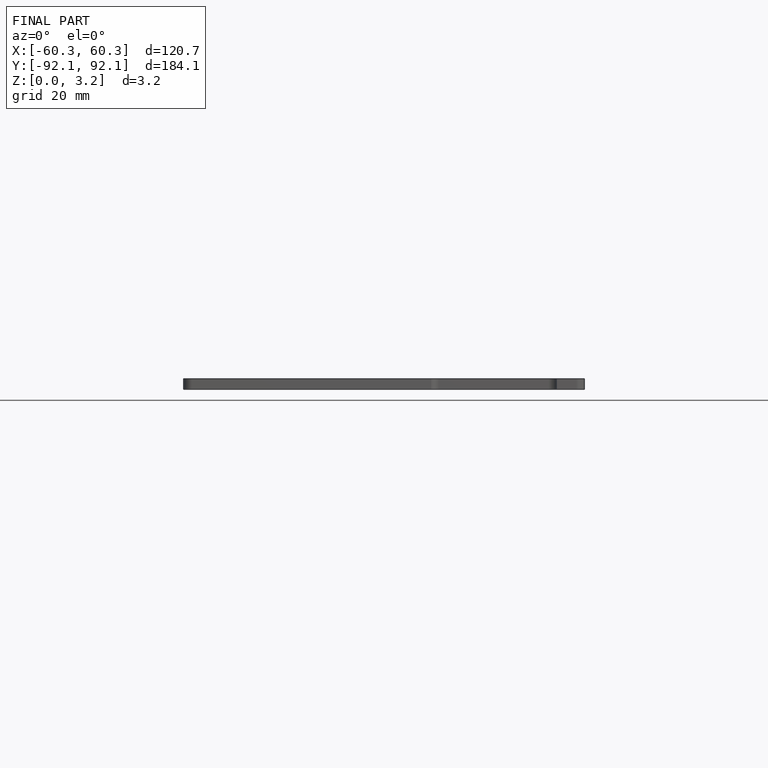
[diagram: finished part — front view with bounding-box wireframe]
